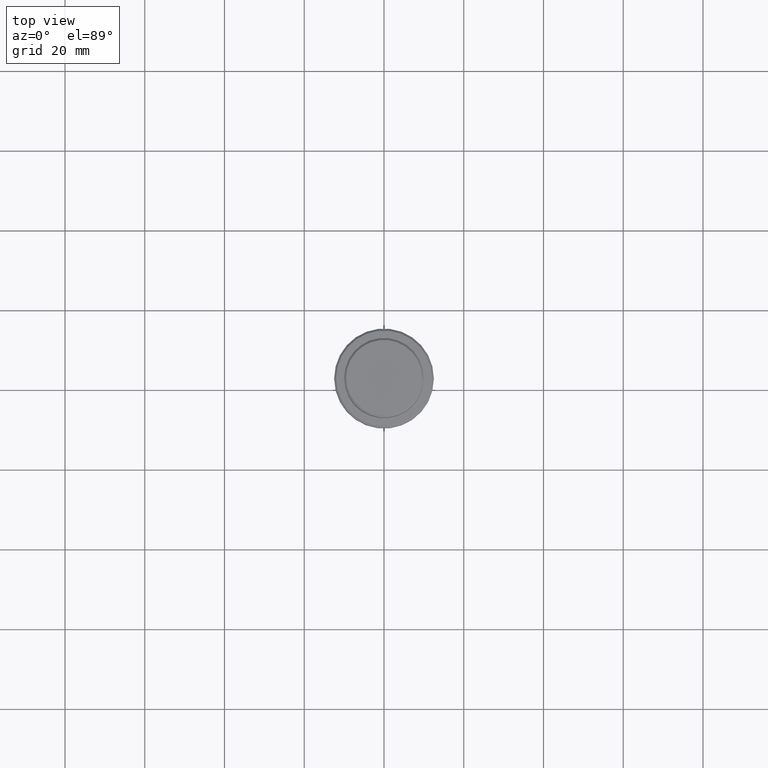
[diagram: clean part render]
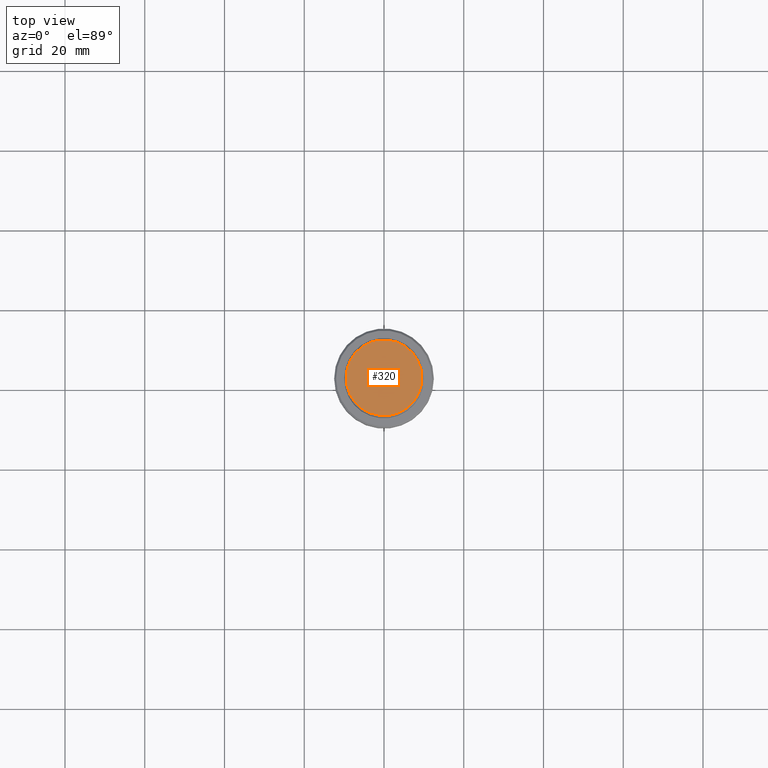
[diagram: same view with one face highlighted and labeled with its STEP entity id]
A machine part, top view. The second image highlights one B-rep face of the part: STEP entity #320.
In plain terms, the highlighted planar face has unit normal (0, -0, 1).
Its self-contained STEP definition (entity closure, byte-faithful):
#13 = CIRCLE ( 'NONE', #1142, 9.500000000000008882 ) ;
#19 = DIRECTION ( 'NONE',  ( 1.000000000000000000, 0.000000000000000000, 0.000000000000000000 ) ) ;
#114 = DIRECTION ( 'NONE',  ( 0.000000000000000000, -0.000000000000000000, 1.000000000000000000 ) ) ;
#121 = CARTESIAN_POINT ( 'NONE',  ( 0.000000000000000000, 0.000000000000000000, 0.000000000000000000 ) ) ;
#234 = VERTEX_POINT ( 'NONE', #1390 ) ;
#256 = PLANE ( 'NONE',  #1272 ) ;
#320 = ADVANCED_FACE ( 'NONE', ( #900 ), #256, .T. ) ;
#414 = DIRECTION ( 'NONE',  ( 1.000000000000000000, 0.000000000000000000, 0.000000000000000000 ) ) ;
#435 = CARTESIAN_POINT ( 'NONE',  ( -9.500000000000008882, 0.000000000000000000, 0.000000000000000000 ) ) ;
#738 = CARTESIAN_POINT ( 'NONE',  ( 0.000000000000000000, 0.000000000000000000, 0.000000000000000000 ) ) ;
#875 = DIRECTION ( 'NONE',  ( -0.000000000000000000, -0.000000000000000000, 1.000000000000000000 ) ) ;
#900 = FACE_OUTER_BOUND ( 'NONE', #924, .T. ) ;
#924 = EDGE_LOOP ( 'NONE', ( #1066, #1173 ) ) ;
#960 = VERTEX_POINT ( 'NONE', #435 ) ;
#1066 = ORIENTED_EDGE ( 'NONE', *, *, #1398, .T. ) ;
#1085 = DIRECTION ( 'NONE',  ( -0.000000000000000000, -0.000000000000000000, 1.000000000000000000 ) ) ;
#1118 = CARTESIAN_POINT ( 'NONE',  ( 0.000000000000000000, 0.000000000000000000, 0.000000000000000000 ) ) ;
#1142 = AXIS2_PLACEMENT_3D ( 'NONE', #1118, #875, #1417 ) ;
#1173 = ORIENTED_EDGE ( 'NONE', *, *, #1261, .T. ) ;
#1237 = CIRCLE ( 'NONE', #1412, 9.500000000000008882 ) ;
#1261 = EDGE_CURVE ( 'NONE', #234, #960, #1237, .T. ) ;
#1272 = AXIS2_PLACEMENT_3D ( 'NONE', #121, #114, #19 ) ;
#1390 = CARTESIAN_POINT ( 'NONE',  ( 9.500000000000008882, 1.194030629168669864E-15, 0.000000000000000000 ) ) ;
#1398 = EDGE_CURVE ( 'NONE', #960, #234, #13, .T. ) ;
#1412 = AXIS2_PLACEMENT_3D ( 'NONE', #738, #1085, #414 ) ;
#1417 = DIRECTION ( 'NONE',  ( 1.000000000000000000, 0.000000000000000000, 0.000000000000000000 ) ) ;